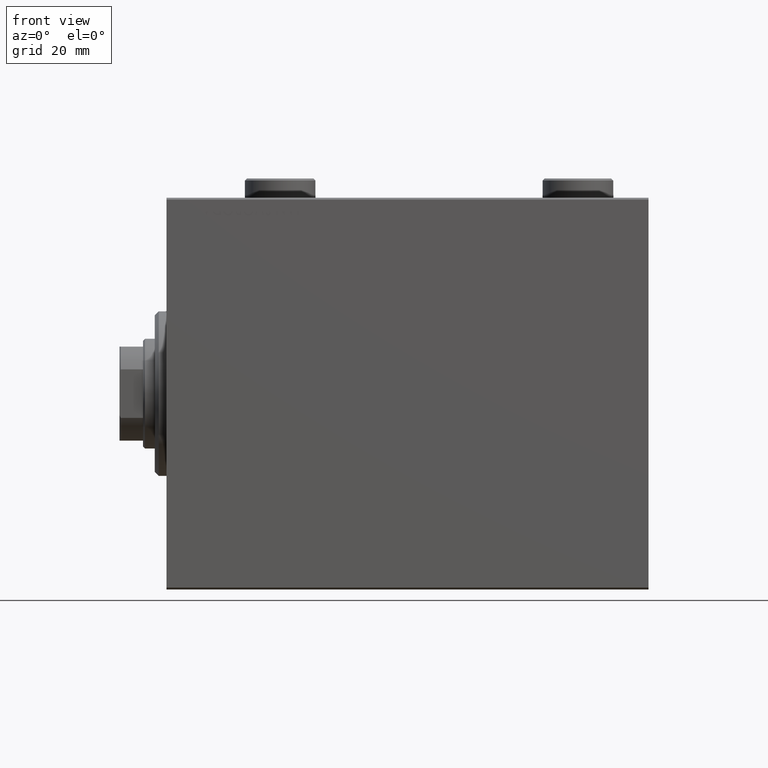
[diagram: clean part render]
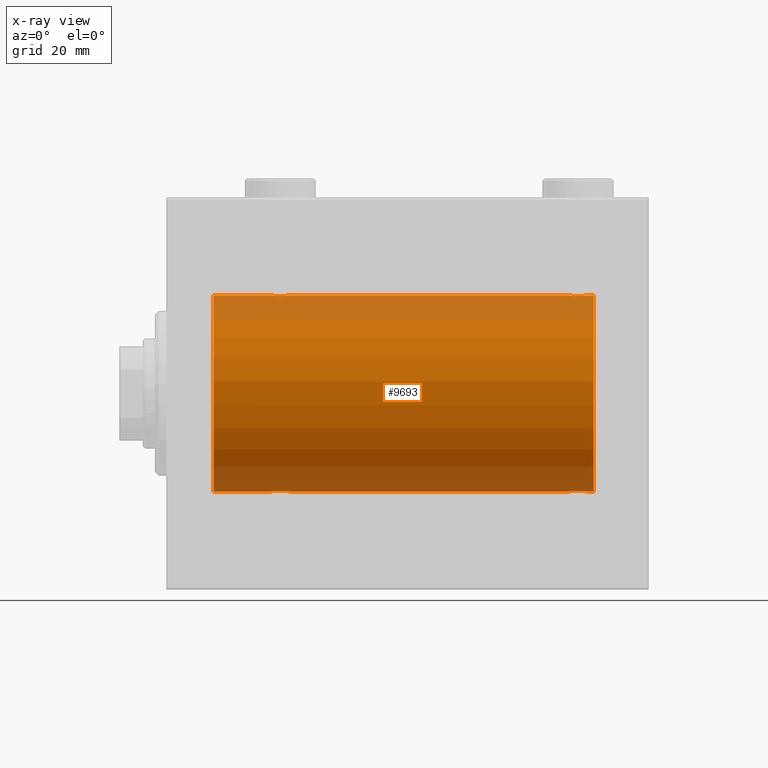
[diagram: x-ray — body ghosted, one internal face saturated and labeled with its STEP entity id]
A machine part, front view, then the same camera in x-ray: the body is ghosted and one INTERNAL B-rep face — a face not visible from any outside direction — is saturated and labeled: STEP entity #9693.
In plain terms, the highlighted cylindrical surface (partial cylindrical patch) has radius 25 mm, axis along (-1, -0, -0).
Its self-contained STEP definition (entity closure, byte-faithful):
#82 = CARTESIAN_POINT ( 'NONE',  ( 102.6278403059138924, -0.8058335233485547366, 24.98746277938382221 ) ) ;
#316 = CARTESIAN_POINT ( 'NONE',  ( 106.2508402392405742, -2.170728182476736379, 24.90574631553725027 ) ) ;
#388 = CARTESIAN_POINT ( 'NONE',  ( 109.0000000000000000, 0.000000000000000000, 25.00000000000000000 ) ) ;
#423 = CARTESIAN_POINT ( 'NONE',  ( 106.2538319542450296, -2.169003991399883091, -24.90589728951138326 ) ) ;
#535 = CARTESIAN_POINT ( 'NONE',  ( 106.8818595414864774, -1.653834020452950915, 24.94550385189584318 ) ) ;
#552 = VERTEX_POINT ( 'NONE', #26153 ) ;
#648 = CARTESIAN_POINT ( 'NONE',  ( 107.4841784005765817, -0.3254210271412233957, -24.99840249400844883 ) ) ;
#989 = CARTESIAN_POINT ( 'NONE',  ( 103.4746381775692186, -1.987446652080276488, 24.92104239223420947 ) ) ;
#1093 = CARTESIAN_POINT ( 'NONE',  ( 103.8927615416159114, -2.247417070759910818, -24.89885693081946272 ) ) ;
#1242 = ORIENTED_EDGE ( 'NONE', *, *, #13176, .F. ) ;
#1763 = DIRECTION ( 'NONE',  ( -1.000000000000000000, -0.000000000000000000, -0.000000000000000000 ) ) ;
#1939 = CARTESIAN_POINT ( 'NONE',  ( 27.01250184165602164, -1.525407911884368417, 24.95379469572363007 ) ) ;
#2165 = CARTESIAN_POINT ( 'NONE',  ( 29.16323589638543368, -2.500125740978201616, 24.87467329022545215 ) ) ;
#2758 = CARTESIAN_POINT ( 'NONE',  ( 29.64904390169096970, -2.419770561643905804, -24.88263927071751169 ) ) ;
#3213 = CARTESIAN_POINT ( 'NONE',  ( 104.6740342996053670, -2.484007091859777638, -24.87630842367762796 ) ) ;
#3231 = CARTESIAN_POINT ( 'NONE',  ( 11.99999999999999645, 0.000000000000000000, 0.000000000000000000 ) ) ;
#3449 = CARTESIAN_POINT ( 'NONE',  ( 28.83676410361457343, -2.500125740978191846, -24.87467329022545925 ) ) ;
#3622 = CARTESIAN_POINT ( 'NONE',  ( 102.5000000000000000, -1.280060314878013390E-14, -25.00000000000000000 ) ) ;
#3666 = CARTESIAN_POINT ( 'NONE',  ( 107.5000000000000000, 3.061616978466108082E-15, -25.00000000000000000 ) ) ;
#3892 = CARTESIAN_POINT ( 'NONE',  ( 107.1701129028092794, -1.252049606094338241, -24.96900299967627745 ) ) ;
#3898 = EDGE_CURVE ( 'NONE', #43776, #39457, #43448, .T. ) ;
#3982 = CARTESIAN_POINT ( 'NONE',  ( 109.0000000000000000, 0.000000000000000000, 0.000000000000000000 ) ) ;
#4240 = CARTESIAN_POINT ( 'NONE',  ( 107.2460637909406813, -1.109818057797415936, 24.97580694515541921 ) ) ;
#4316 = EDGE_CURVE ( 'NONE', #12178, #37054, #19864, .T. ) ;
#4686 = CARTESIAN_POINT ( 'NONE',  ( 106.6512113355911424, -1.884161199660632668, 24.92916496727982789 ) ) ;
#4936 = CARTESIAN_POINT ( 'NONE',  ( 28.67052319885731038, -2.483544361357275854, 24.87635491893501793 ) ) ;
#5253 = CARTESIAN_POINT ( 'NONE',  ( 103.3487886644089144, -1.884161199660632224, -24.92916496727982789 ) ) ;
#5522 = EDGE_CURVE ( 'NONE', #552, #39457, #32946, .T. ) ;
#5785 = DIRECTION ( 'NONE',  ( 0.000000000000000000, 0.000000000000000000, 1.000000000000000000 ) ) ;
#5978 = VERTEX_POINT ( 'NONE', #22330 ) ;
#5995 = CARTESIAN_POINT ( 'NONE',  ( 31.37215969408607563, -0.8058335233485418581, -24.98746277938382931 ) ) ;
#6415 = VERTEX_POINT ( 'NONE', #14791 ) ;
#6455 = CARTESIAN_POINT ( 'NONE',  ( 27.47743225659810307, -1.989585286700244149, -24.92087098724765681 ) ) ;
#6717 = EDGE_CURVE ( 'NONE', #5978, #21039, #31156, .T. ) ;
#7471 = CARTESIAN_POINT ( 'NONE',  ( 102.7523974898044798, -1.106703319666893393, 24.97594585958023217 ) ) ;
#7708 = CARTESIAN_POINT ( 'NONE',  ( 106.9853803371709660, -1.528152964861316132, 24.95362559291378801 ) ) ;
#7954 = CARTESIAN_POINT ( 'NONE',  ( 31.50000000000000000, 3.061616978460191625E-15, -25.00000000000000000 ) ) ;
#8037 = CARTESIAN_POINT ( 'NONE',  ( 102.5000000000000000, -1.280060314878013390E-14, -25.00000000000000000 ) ) ;
#8124 = ORIENTED_EDGE ( 'NONE', *, *, #39620, .T. ) ;
#8404 = CARTESIAN_POINT ( 'NONE',  ( 29.32596570039460104, -2.484007091859770089, 24.87630842367763506 ) ) ;
#8645 = CYLINDRICAL_SURFACE ( 'NONE', #42969, 25.00000000000000000 ) ;
#8852 = VECTOR ( 'NONE', #26469, 1000.000000000000000 ) ;
#8871 = CARTESIAN_POINT ( 'NONE',  ( 31.50000000000000000, -2.684100552846272733E-15, 25.00000000000000000 ) ) ;
#9693 = ADVANCED_FACE ( 'NONE', ( #37304 ), #8645, .F. ) ;
#10005 = CARTESIAN_POINT ( 'NONE',  ( 11.99999999999999645, 0.000000000000000000, 25.00000000000000000 ) ) ;
#10370 = CARTESIAN_POINT ( 'NONE',  ( 27.11814045851354038, -1.653834020452936038, -24.94550385189584674 ) ) ;
#10394 = ORIENTED_EDGE ( 'NONE', *, *, #16665, .F. ) ;
#10596 = CARTESIAN_POINT ( 'NONE',  ( 28.19564339083698457, -2.372734907014171224, -24.88722742718433523 ) ) ;
#10704 = CARTESIAN_POINT ( 'NONE',  ( 103.8896320349113722, -2.245863995402917812, 24.89899750494197050 ) ) ;
#10781 = LINE ( 'NONE', #388, #20126 ) ;
#10930 = CARTESIAN_POINT ( 'NONE',  ( 106.1072384583841028, -2.247417070759912594, 24.89885693081946627 ) ) ;
#11040 = CARTESIAN_POINT ( 'NONE',  ( 105.3294768011426896, -2.483544361357282959, -24.87635491893501793 ) ) ;
#11193 = ORIENTED_EDGE ( 'NONE', *, *, #43180, .F. ) ;
#11223 = CARTESIAN_POINT ( 'NONE',  ( 109.0000000000000000, 0.000000000000000000, 25.00000000000000000 ) ) ;
#11386 = CARTESIAN_POINT ( 'NONE',  ( 103.0125018416560181, -1.525407911884381074, 24.95379469572361586 ) ) ;
#11409 = CARTESIAN_POINT ( 'NONE',  ( 26.50000000000000711, -0.1631750940176210085, 25.00000000000000355 ) ) ;
#11855 = CARTESIAN_POINT ( 'NONE',  ( 26.75239748980448695, -1.106703319666887175, 24.97594585958023572 ) ) ;
#12018 = ORIENTED_EDGE ( 'NONE', *, *, #3898, .T. ) ;
#12092 = CARTESIAN_POINT ( 'NONE',  ( 26.62784030591392792, -0.8058335233485494076, 24.98746277938382576 ) ) ;
#12178 = VERTEX_POINT ( 'NONE', #18115 ) ;
#12330 = CARTESIAN_POINT ( 'NONE',  ( 27.47463817756919013, -1.987446652080266496, 24.92104239223420592 ) ) ;
#12792 = CARTESIAN_POINT ( 'NONE',  ( 30.10723845838410284, -2.247417070759901936, 24.89885693081946272 ) ) ;
#13176 = EDGE_CURVE ( 'NONE', #28850, #552, #32694, .T. ) ;
#13382 = CARTESIAN_POINT ( 'NONE',  ( 31.48417840057656747, -0.3254210271412200650, -24.99840249400844527 ) ) ;
#13845 = CARTESIAN_POINT ( 'NONE',  ( 30.52536182243081342, -1.987446652080259391, -24.92104239223420592 ) ) ;
#14071 = CARTESIAN_POINT ( 'NONE',  ( 26.83172358506043054, -1.255214705003178555, -24.96884293994578030 ) ) ;
#14182 = CARTESIAN_POINT ( 'NONE',  ( 103.7461680457549704, -2.169003991399884423, 24.90589728951138682 ) ) ;
#14290 = ORIENTED_EDGE ( 'NONE', *, *, #4316, .T. ) ;
#14602 = DIRECTION ( 'NONE',  ( -1.000000000000000000, 0.000000000000000000, 0.000000000000000000 ) ) ;
#14632 = CARTESIAN_POINT ( 'NONE',  ( 105.3259657003945904, -2.484007091859779859, 24.87630842367763151 ) ) ;
#14738 = CARTESIAN_POINT ( 'NONE',  ( 106.9874981583439819, -1.525407911884367307, -24.95379469572361586 ) ) ;
#14791 = CARTESIAN_POINT ( 'NONE',  ( 26.50000000000000355, -1.940558383798427991E-23, 25.00000000000000000 ) ) ;
#14852 = CARTESIAN_POINT ( 'NONE',  ( 104.1921165759419523, -2.371528299825766073, 24.88734287464371775 ) ) ;
#14878 = CARTESIAN_POINT ( 'NONE',  ( 26.50000000000000355, -1.940558383798427991E-23, 25.00000000000000000 ) ) ;
#14900 = EDGE_CURVE ( 'NONE', #36904, #25348, #20967, .T. ) ;
#15088 = CARTESIAN_POINT ( 'NONE',  ( 103.1158761721352590, -1.651251241585114826, 24.94567559498347720 ) ) ;
#15459 = EDGE_CURVE ( 'NONE', #28850, #5978, #28491, .T. ) ;
#15810 = CARTESIAN_POINT ( 'NONE',  ( 109.0000000000000000, 0.000000000000000000, 0.000000000000000000 ) ) ;
#16027 = CARTESIAN_POINT ( 'NONE',  ( 29.64560666148632606, -2.420689345803765935, 24.88254961038873958 ) ) ;
#16255 = CARTESIAN_POINT ( 'NONE',  ( 31.16827641493956591, -1.255214705003186770, 24.96884293994577320 ) ) ;
#16561 = VERTEX_POINT ( 'NONE', #28118 ) ;
#16598 = ORIENTED_EDGE ( 'NONE', *, *, #24948, .T. ) ;
#16665 = EDGE_CURVE ( 'NONE', #6415, #37054, #10781, .T. ) ;
#16851 = CARTESIAN_POINT ( 'NONE',  ( 26.50000000000000000, -0.3305063766663763336, -25.00000000000000355 ) ) ;
#17534 = CARTESIAN_POINT ( 'NONE',  ( 106.6538333614933975, -1.881857718844729188, -24.92933960374833546 ) ) ;
#17537 = CARTESIAN_POINT ( 'NONE',  ( 27.01461966282905180, -1.528152964861308138, -24.95362559291378801 ) ) ;
#18115 = CARTESIAN_POINT ( 'NONE',  ( 11.99999999999999645, 3.061616997868383043E-15, -25.00000000000000000 ) ) ;
#18323 = CARTESIAN_POINT ( 'NONE',  ( 102.5000000000000000, -0.1631750940176233677, 25.00000000000000711 ) ) ;
#18771 = CARTESIAN_POINT ( 'NONE',  ( 102.5158215994234183, -0.3254210271412262823, 24.99840249400844527 ) ) ;
#18828 = CARTESIAN_POINT ( 'NONE',  ( 109.0000000000000000, 3.061616997868383043E-15, -25.00000000000000000 ) ) ;
#18874 = CARTESIAN_POINT ( 'NONE',  ( 102.8317235850603879, -1.255214705003200537, -24.96884293994577675 ) ) ;
#19020 = CARTESIAN_POINT ( 'NONE',  ( 30.88185954148645962, -1.653834020452942255, 24.94550385189584674 ) ) ;
#19254 = CARTESIAN_POINT ( 'NONE',  ( 30.52256774340189693, -1.989585286700248590, 24.92087098724766392 ) ) ;
#19491 = CARTESIAN_POINT ( 'NONE',  ( 28.35095609830903385, -2.419770561643914686, 24.88263927071751169 ) ) ;
#19716 = CARTESIAN_POINT ( 'NONE',  ( 26.82988709719076326, -1.252049606094339795, 24.96900299967627745 ) ) ;
#19864 = CIRCLE ( 'NONE', #25749, 25.00000000000000000 ) ;
#20082 = CARTESIAN_POINT ( 'NONE',  ( 31.17011290280925451, -1.252049606094333578, -24.96900299967627745 ) ) ;
#20126 = VECTOR ( 'NONE', #28570, 1000.000000000000000 ) ;
#20457 = ORIENTED_EDGE ( 'NONE', *, *, #14900, .T. ) ;
#20760 = CARTESIAN_POINT ( 'NONE',  ( 105.6490439016909733, -2.419770561643919127, -24.88263927071750814 ) ) ;
#20967 = B_SPLINE_CURVE_WITH_KNOTS ( 'NONE', 3,
 ( #41362, #27704, #13382, #23998, #5995, #31170, #20082, #34878, #27471, #45503, #13845, #38568, #23766, #45727, #2758, #24453, #35106, #3449, #27933, #42046, #10596, #45275, #38114, #6455, #34420, #10370, #17537, #14071, #28157, #34189, #16851, #37883 ),
 .UNSPECIFIED., .F., .F.,
 ( 4, 2, 2, 2, 2, 2, 2, 2, 2, 2, 2, 2, 2, 2, 2, 4 ),
 ( 0.007821024441662299820, 0.008309723826317907958, 0.008798423210973517830, 0.009287122595629122498, 0.009775821980284727167, 0.01026452136494033184, 0.01075322074959593650, 0.01124192013425154291, 0.01173061951890714757, 0.01221931890356275051, 0.01270801828821835691, 0.01319671767287396158, 0.01368541705752956625, 0.01417411644218517092, 0.01466281582684077732, 0.01564021459615199186 ),
 .UNSPECIFIED. ) ;
#21039 = VERTEX_POINT ( 'NONE', #3622 ) ;
#21331 = CARTESIAN_POINT ( 'NONE',  ( 107.5000000000000000, 3.101442856047762335E-15, 25.00000000000000000 ) ) ;
#21394 = B_SPLINE_CURVE_WITH_KNOTS ( 'NONE', 3,
 ( #14878, #11409, #33603, #40767, #12092, #11855, #19716, #1939, #33122, #29424, #12330, #29651, #25948, #40057, #19491, #4936, #26187, #2165, #8404, #16027, #37519, #12792, #43530, #19254, #22481, #19020, #36829, #16255, #43763, #26420, #26878, #8871 ),
 .UNSPECIFIED., .F., .F.,
 ( 4, 2, 2, 2, 2, 2, 2, 2, 2, 2, 2, 2, 2, 2, 2, 4 ),
 ( 0.007821024441662254717, 0.008309723826317859385, 0.008798423210973464054, 0.009287122595629070457, 0.009775821980284676860, 0.01026452136494028153, 0.01075322074959588620, 0.01124192013425149260, 0.01173061951890709900, 0.01221931890356270367, 0.01270801828821830834, 0.01319671767287391301, 0.01368541705752951768, 0.01417411644218512408, 0.01466281582684072701, 0.01564021459615193982 ),
 .UNSPECIFIED. ) ;
#21440 = CARTESIAN_POINT ( 'NONE',  ( 107.5000000000000000, -0.1631750940176202036, -25.00000000000000355 ) ) ;
#21790 = CARTESIAN_POINT ( 'NONE',  ( 105.1632358963854443, -2.500125740978211386, 24.87467329022544860 ) ) ;
#22232 = CARTESIAN_POINT ( 'NONE',  ( 102.8298870971906922, -1.252049606094352230, 24.96900299967626324 ) ) ;
#22330 = CARTESIAN_POINT ( 'NONE',  ( 107.5000000000000000, 3.061616978466108082E-15, -25.00000000000000000 ) ) ;
#22339 = CARTESIAN_POINT ( 'NONE',  ( 104.1956433908369490, -2.372734907014188099, -24.88722742718433167 ) ) ;
#22481 = CARTESIAN_POINT ( 'NONE',  ( 30.65121133559112820, -1.884161199660621344, 24.92916496727982434 ) ) ;
#22540 = LINE ( 'NONE', #43590, #32912 ) ;
#22726 = DIRECTION ( 'NONE',  ( -1.000000000000000000, -0.000000000000000000, -0.000000000000000000 ) ) ;
#22768 = CARTESIAN_POINT ( 'NONE',  ( 109.0000000000000000, 0.000000000000000000, 25.00000000000000000 ) ) ;
#22945 = CARTESIAN_POINT ( 'NONE',  ( 107.5000000000000000, 3.101442856047762335E-15, 25.00000000000000000 ) ) ;
#23165 = VECTOR ( 'NONE', #24788, 1000.000000000000000 ) ;
#23766 = CARTESIAN_POINT ( 'NONE',  ( 30.11036796508864910, -2.245863995402895164, -24.89899750494197406 ) ) ;
#23998 = CARTESIAN_POINT ( 'NONE',  ( 31.42014909220930363, -0.6480119923854200659, -24.99212088949392196 ) ) ;
#24453 = CARTESIAN_POINT ( 'NONE',  ( 29.32947680114268252, -2.483544361357266084, -24.87635491893501083 ) ) ;
#24788 = DIRECTION ( 'NONE',  ( -1.000000000000000000, -0.000000000000000000, -0.000000000000000000 ) ) ;
#24793 = CARTESIAN_POINT ( 'NONE',  ( 104.3509560983090410, -2.419770561643924012, 24.88263927071751525 ) ) ;
#24948 = EDGE_CURVE ( 'NONE', #21039, #36904, #22540, .T. ) ;
#25130 = CARTESIAN_POINT ( 'NONE',  ( 105.1670649517806169, -2.499872792855096559, -24.87469871246082320 ) ) ;
#25216 = DIRECTION ( 'NONE',  ( 0.000000000000000000, 0.000000000000000000, 1.000000000000000000 ) ) ;
#25348 = VERTEX_POINT ( 'NONE', #33294 ) ;
#25477 = CARTESIAN_POINT ( 'NONE',  ( 107.4334935523975076, -0.6588655613945838541, 24.99312727339970408 ) ) ;
#25544 = LINE ( 'NONE', #11223, #38569 ) ;
#25701 = CARTESIAN_POINT ( 'NONE',  ( 107.1682764149395268, -1.255214705003183662, 24.96884293994577320 ) ) ;
#25749 = AXIS2_PLACEMENT_3D ( 'NONE', #3231, #37439, #5785 ) ;
#25948 = CARTESIAN_POINT ( 'NONE',  ( 27.88963203491136156, -2.245863995402906266, 24.89899750494197050 ) ) ;
#26153 = CARTESIAN_POINT ( 'NONE',  ( 109.0000000000000000, 0.000000000000000000, 25.00000000000000000 ) ) ;
#26187 = CARTESIAN_POINT ( 'NONE',  ( 28.83293504821939379, -2.499872792855087678, 24.87469871246082320 ) ) ;
#26361 = DIRECTION ( 'NONE',  ( -1.000000000000000000, -0.000000000000000000, -0.000000000000000000 ) ) ;
#26420 = CARTESIAN_POINT ( 'NONE',  ( 31.43349355239747567, -0.6588655613945897382, 24.99312727339969697 ) ) ;
#26469 = DIRECTION ( 'NONE',  ( -1.000000000000000000, -0.000000000000000000, -0.000000000000000000 ) ) ;
#26878 = CARTESIAN_POINT ( 'NONE',  ( 31.49999999999998579, -0.3305063766663716707, 25.00000000000000000 ) ) ;
#27062 = CARTESIAN_POINT ( 'NONE',  ( 102.5000000000000000, -1.940242839436339586E-23, 25.00000000000000000 ) ) ;
#27471 = CARTESIAN_POINT ( 'NONE',  ( 30.88412382786470900, -1.651251241585097063, -24.94567559498348075 ) ) ;
#27704 = CARTESIAN_POINT ( 'NONE',  ( 31.50000000000000000, -0.1631750940176180942, -25.00000000000001066 ) ) ;
#27933 = CARTESIAN_POINT ( 'NONE',  ( 28.67403429960540606, -2.484007091859761207, -24.87630842367763506 ) ) ;
#28118 = CARTESIAN_POINT ( 'NONE',  ( 31.50000000000000000, -2.684100552846272733E-15, 25.00000000000000000 ) ) ;
#28157 = CARTESIAN_POINT ( 'NONE',  ( 26.75393620905933290, -1.109818057797416158, -24.97580694515542277 ) ) ;
#28491 = LINE ( 'NONE', #42150, #23165 ) ;
#28570 = DIRECTION ( 'NONE',  ( -1.000000000000000000, -0.000000000000000000, -0.000000000000000000 ) ) ;
#28606 = CARTESIAN_POINT ( 'NONE',  ( 106.1103679650886136, -2.245863995402916924, -24.89899750494197050 ) ) ;
#28850 = VERTEX_POINT ( 'NONE', #18828 ) ;
#29179 = CARTESIAN_POINT ( 'NONE',  ( 104.8329350482194116, -2.499872792855098780, 24.87469871246082675 ) ) ;
#29424 = CARTESIAN_POINT ( 'NONE',  ( 27.34616663850662377, -1.881857718844722527, 24.92933960374833902 ) ) ;
#29651 = CARTESIAN_POINT ( 'NONE',  ( 27.74616804575497042, -2.169003991399875098, 24.90589728951138326 ) ) ;
#31156 = B_SPLINE_CURVE_WITH_KNOTS ( 'NONE', 3,
 ( #3666, #21440, #648, #35549, #42043, #42943, #3892, #14738, #38791, #17534, #35783, #423, #28606, #42723, #20760, #11040, #25130, #34875, #3213, #31404, #22339, #1093, #39912, #36911, #5253, #43173, #43390, #18874, #33449, #40380, #32976, #8037 ),
 .UNSPECIFIED., .F., .F.,
 ( 4, 2, 2, 2, 2, 2, 2, 2, 2, 2, 2, 2, 2, 2, 2, 4 ),
 ( 0.007821024441662317167, 0.008309723826317923570, 0.008798423210973531708, 0.009287122595629138111, 0.009775821980284744514, 0.01026452136494035092, 0.01075322074959595905, 0.01124192013425156546, 0.01173061951890717186, 0.01221931890356278000, 0.01270801828821838640, 0.01319671767287399280, 0.01368541705752960094, 0.01417411644218520735, 0.01466281582684081375, 0.01564021459615204390 ),
 .UNSPECIFIED. ) ;
#31170 = CARTESIAN_POINT ( 'NONE',  ( 31.24760251019550950, -1.106703319666878071, -24.97594585958023572 ) ) ;
#31404 = CARTESIAN_POINT ( 'NONE',  ( 104.3543933385136739, -2.420689345803770820, -24.88254961038873248 ) ) ;
#31969 = CARTESIAN_POINT ( 'NONE',  ( 107.5000000000000284, -0.3305063766663766667, 25.00000000000000355 ) ) ;
#32419 = CARTESIAN_POINT ( 'NONE',  ( 105.6456066614863261, -2.420689345803773040, 24.88254961038873603 ) ) ;
#32645 = CARTESIAN_POINT ( 'NONE',  ( 105.8043566091630225, -2.372734907014189876, 24.88722742718433523 ) ) ;
#32694 = CIRCLE ( 'NONE', #43750, 25.00000000000000000 ) ;
#32912 = VECTOR ( 'NONE', #1763, 1000.000000000000000 ) ;
#32946 = LINE ( 'NONE', #22768, #8852 ) ;
#32976 = CARTESIAN_POINT ( 'NONE',  ( 102.5000000000000000, -0.3305063766663864921, -25.00000000000000355 ) ) ;
#33067 = CARTESIAN_POINT ( 'NONE',  ( 109.0000000000000000, 3.061616997868383043E-15, -25.00000000000000000 ) ) ;
#33122 = CARTESIAN_POINT ( 'NONE',  ( 27.11587617213529100, -1.651251241585107055, 24.94567559498349141 ) ) ;
#33294 = CARTESIAN_POINT ( 'NONE',  ( 26.50000000000000355, -4.113702575029848227E-15, -25.00000000000000000 ) ) ;
#33449 = CARTESIAN_POINT ( 'NONE',  ( 102.7539362090593187, -1.109818057797434143, -24.97580694515541921 ) ) ;
#33603 = CARTESIAN_POINT ( 'NONE',  ( 26.51582159942343253, -0.3254210271412228961, 24.99840249400844527 ) ) ;
#34189 = CARTESIAN_POINT ( 'NONE',  ( 26.56650644760252789, -0.6588655613945878509, -24.99312727339970763 ) ) ;
#34420 = CARTESIAN_POINT ( 'NONE',  ( 27.34878866440888245, -1.884161199660614017, -24.92916496727982434 ) ) ;
#34875 = CARTESIAN_POINT ( 'NONE',  ( 104.8367641036145415, -2.500125740978209610, -24.87467329022544149 ) ) ;
#34878 = CARTESIAN_POINT ( 'NONE',  ( 30.98749815834398902, -1.525407911884361312, -24.95379469572362652 ) ) ;
#35106 = CARTESIAN_POINT ( 'NONE',  ( 29.16706495178060621, -2.499872792855077464, -24.87469871246082320 ) ) ;
#35262 = ORIENTED_EDGE ( 'NONE', *, *, #5522, .F. ) ;
#35439 = CARTESIAN_POINT ( 'NONE',  ( 106.5225677434019076, -1.989585286700262801, 24.92087098724766747 ) ) ;
#35549 = CARTESIAN_POINT ( 'NONE',  ( 107.4201490922092717, -0.6480119923854253949, -24.99212088949390775 ) ) ;
#35783 = CARTESIAN_POINT ( 'NONE',  ( 106.5253618224308099, -1.987446652080275156, -24.92104239223420592 ) ) ;
#35898 = CARTESIAN_POINT ( 'NONE',  ( 104.6705231988573246, -2.483544361357286956, 24.87635491893501438 ) ) ;
#36829 = CARTESIAN_POINT ( 'NONE',  ( 30.98538033717095175, -1.528152964861317464, 24.95362559291379156 ) ) ;
#36838 = DIRECTION ( 'NONE',  ( 0.000000000000000000, 0.000000000000000000, 1.000000000000000000 ) ) ;
#36904 = VERTEX_POINT ( 'NONE', #7954 ) ;
#36911 = CARTESIAN_POINT ( 'NONE',  ( 103.4774322565981208, -1.989585286700261468, -24.92087098724766747 ) ) ;
#36929 = EDGE_CURVE ( 'NONE', #6415, #16561, #21394, .T. ) ;
#37054 = VERTEX_POINT ( 'NONE', #10005 ) ;
#37304 = FACE_OUTER_BOUND ( 'NONE', #41669, .T. ) ;
#37439 = DIRECTION ( 'NONE',  ( -1.000000000000000000, 0.000000000000000000, 0.000000000000000000 ) ) ;
#37519 = CARTESIAN_POINT ( 'NONE',  ( 29.80435660916301543, -2.372734907014179662, 24.88722742718433167 ) ) ;
#37883 = CARTESIAN_POINT ( 'NONE',  ( 26.50000000000000355, -4.113702575029848227E-15, -25.00000000000000000 ) ) ;
#38114 = CARTESIAN_POINT ( 'NONE',  ( 27.74915976075945068, -2.170728182476717283, -24.90574631553725027 ) ) ;
#38160 = ORIENTED_EDGE ( 'NONE', *, *, #15459, .T. ) ;
#38568 = CARTESIAN_POINT ( 'NONE',  ( 30.25383195424502958, -2.169003991399867104, -24.90589728951138326 ) ) ;
#38569 = VECTOR ( 'NONE', #39646, 1000.000000000000000 ) ;
#38791 = CARTESIAN_POINT ( 'NONE',  ( 106.8841238278646983, -1.651251241585112384, -24.94567559498348430 ) ) ;
#39129 = CARTESIAN_POINT ( 'NONE',  ( 102.5798509077906715, -0.6480119923854293917, 24.99212088949391131 ) ) ;
#39457 = VERTEX_POINT ( 'NONE', #22945 ) ;
#39620 = EDGE_CURVE ( 'NONE', #25348, #12178, #43943, .T. ) ;
#39646 = DIRECTION ( 'NONE',  ( -1.000000000000000000, -0.000000000000000000, -0.000000000000000000 ) ) ;
#39912 = CARTESIAN_POINT ( 'NONE',  ( 103.7491597607594684, -2.170728182476735491, -24.90574631553725027 ) ) ;
#40034 = VECTOR ( 'NONE', #26361, 1000.000000000000000 ) ;
#40057 = CARTESIAN_POINT ( 'NONE',  ( 28.19211657594194875, -2.371528299825753638, 24.88734287464371420 ) ) ;
#40380 = CARTESIAN_POINT ( 'NONE',  ( 102.5665064476025066, -0.6588655613946048373, -24.99312727339970053 ) ) ;
#40767 = CARTESIAN_POINT ( 'NONE',  ( 26.57985090779070347, -0.6480119923854233965, 24.99212088949390775 ) ) ;
#41362 = CARTESIAN_POINT ( 'NONE',  ( 31.50000000000000000, 3.061616978460191625E-15, -25.00000000000000000 ) ) ;
#41373 = ORIENTED_EDGE ( 'NONE', *, *, #6717, .T. ) ;
#41669 = EDGE_LOOP ( 'NONE', ( #1242, #38160, #41373, #16598, #20457, #8124, #14290, #10394, #44825, #11193, #12018, #35262 ) ) ;
#42043 = CARTESIAN_POINT ( 'NONE',  ( 107.3721596940861076, -0.8058335233485520721, -24.98746277938383287 ) ) ;
#42046 = CARTESIAN_POINT ( 'NONE',  ( 28.35439333851368460, -2.420689345803756165, -24.88254961038873958 ) ) ;
#42150 = CARTESIAN_POINT ( 'NONE',  ( 109.0000000000000000, 3.061616997868383043E-15, -25.00000000000000000 ) ) ;
#42386 = CARTESIAN_POINT ( 'NONE',  ( 103.3461666385066309, -1.881857718844731187, 24.92933960374834257 ) ) ;
#42610 = CARTESIAN_POINT ( 'NONE',  ( 102.5000000000000000, -1.940242839436339586E-23, 25.00000000000000000 ) ) ;
#42723 = CARTESIAN_POINT ( 'NONE',  ( 105.8078834240580619, -2.371528299825764297, -24.88734287464370709 ) ) ;
#42943 = CARTESIAN_POINT ( 'NONE',  ( 107.2476025101955486, -1.106703319666890728, -24.97594585958024282 ) ) ;
#42969 = AXIS2_PLACEMENT_3D ( 'NONE', #15810, #22726, #36838 ) ;
#43173 = CARTESIAN_POINT ( 'NONE',  ( 103.1181404585135510, -1.653834020452952469, -24.94550385189584318 ) ) ;
#43180 = EDGE_CURVE ( 'NONE', #43776, #16561, #25544, .T. ) ;
#43390 = CARTESIAN_POINT ( 'NONE',  ( 103.0146196628290198, -1.528152964861329899, -24.95362559291378091 ) ) ;
#43448 = B_SPLINE_CURVE_WITH_KNOTS ( 'NONE', 3,
 ( #42610, #18323, #18771, #39129, #82, #7471, #22232, #11386, #15088, #42386, #989, #14182, #10704, #14852, #24793, #35898, #29179, #21790, #14632, #32419, #32645, #10930, #316, #35439, #4686, #535, #7708, #25701, #4240, #25477, #31969, #21331 ),
 .UNSPECIFIED., .F., .F.,
 ( 4, 2, 2, 2, 2, 2, 2, 2, 2, 2, 2, 2, 2, 2, 2, 4 ),
 ( 0.007821024441662331045, 0.008309723826317942652, 0.008798423210973554259, 0.009287122595629165867, 0.009775821980284777474, 0.01026452136494038908, 0.01075322074959600069, 0.01124192013425161230, 0.01173061951890722390, 0.01221931890356283551, 0.01270801828821844712, 0.01319671767287405872, 0.01368541705752967033, 0.01417411644218528194, 0.01466281582684089355, 0.01564021459615209941 ),
 .UNSPECIFIED. ) ;
#43530 = CARTESIAN_POINT ( 'NONE',  ( 30.25084023924055288, -2.170728182476724832, 24.90574631553725027 ) ) ;
#43590 = CARTESIAN_POINT ( 'NONE',  ( 109.0000000000000000, 3.061616997868383043E-15, -25.00000000000000000 ) ) ;
#43750 = AXIS2_PLACEMENT_3D ( 'NONE', #3982, #14602, #25216 ) ;
#43763 = CARTESIAN_POINT ( 'NONE',  ( 31.24606379094066355, -1.109818057797419710, 24.97580694515541921 ) ) ;
#43776 = VERTEX_POINT ( 'NONE', #27062 ) ;
#43943 = LINE ( 'NONE', #33067, #40034 ) ;
#44825 = ORIENTED_EDGE ( 'NONE', *, *, #36929, .T. ) ;
#45275 = CARTESIAN_POINT ( 'NONE',  ( 27.89276154161591137, -2.247417070759893498, -24.89885693081945917 ) ) ;
#45503 = CARTESIAN_POINT ( 'NONE',  ( 30.65383336149337978, -1.881857718844712091, -24.92933960374833546 ) ) ;
#45727 = CARTESIAN_POINT ( 'NONE',  ( 29.80788342405805835, -2.371528299825741648, -24.88734287464370709 ) ) ;